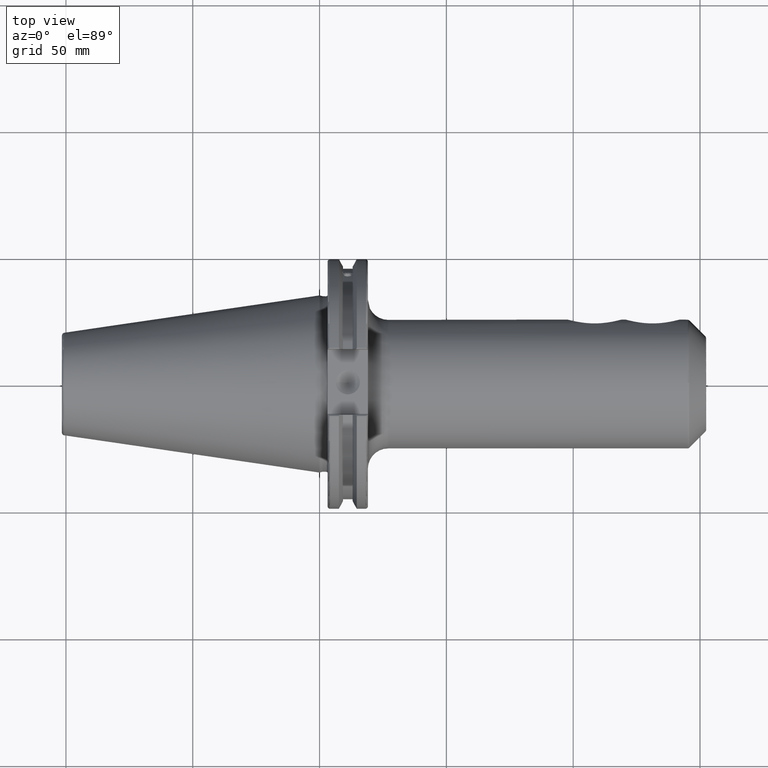
[diagram: clean part render]
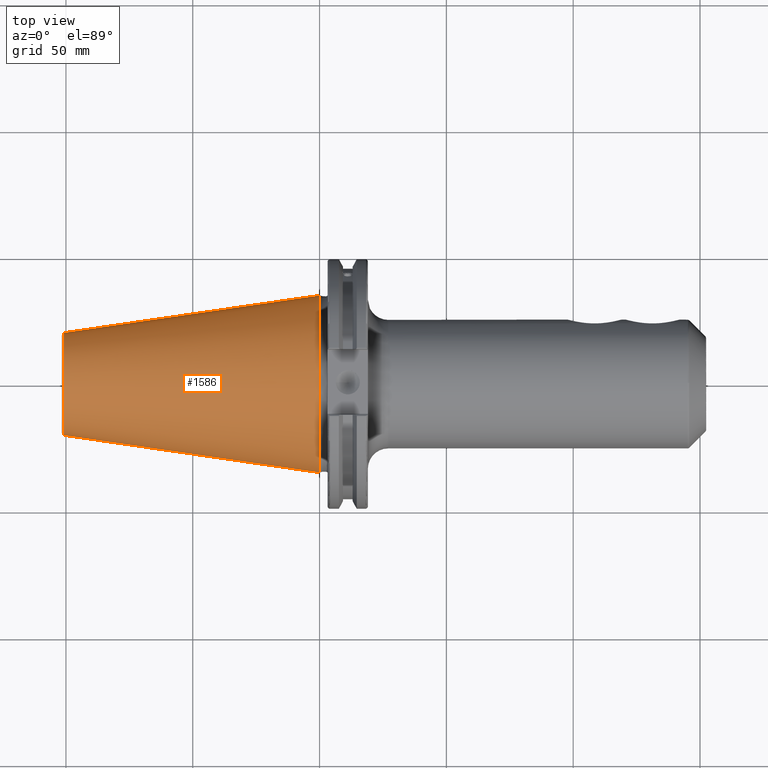
[diagram: same view with one face highlighted and labeled with its STEP entity id]
A machine part, top view. The second image highlights one B-rep face of the part: STEP entity #1586.
In plain terms, the highlighted conical surface has half-angle 8.297 deg.
Its self-contained STEP definition (entity closure, byte-faithful):
#50=CONICAL_SURFACE('',#1767,27.5166666666666,0.14481249823894);
#181=FACE_OUTER_BOUND('',#294,.T.);
#294=EDGE_LOOP('',(#1368,#1369,#1370,#1371,#1372));
#446=LINE('',#3266,#538);
#538=VECTOR('',#2147,27.5166666666666);
#617=CIRCLE('',#1761,20.233121911427);
#618=CIRCLE('',#1762,20.233121911427);
#622=CIRCLE('',#1768,34.925);
#782=VERTEX_POINT('',#3253);
#783=VERTEX_POINT('',#3254);
#786=VERTEX_POINT('',#3264);
#993=EDGE_CURVE('',#782,#783,#617,.T.);
#994=EDGE_CURVE('',#783,#782,#618,.T.);
#998=EDGE_CURVE('',#786,#786,#622,.T.);
#999=EDGE_CURVE('',#786,#783,#446,.T.);
#1368=ORIENTED_EDGE('',*,*,#998,.F.);
#1369=ORIENTED_EDGE('',*,*,#999,.T.);
#1370=ORIENTED_EDGE('',*,*,#993,.F.);
#1371=ORIENTED_EDGE('',*,*,#994,.F.);
#1372=ORIENTED_EDGE('',*,*,#999,.F.);
#1586=ADVANCED_FACE('',(#181),#50,.T.);
#1761=AXIS2_PLACEMENT_3D('',#3255,#2131,#2132);
#1762=AXIS2_PLACEMENT_3D('',#3256,#2133,#2134);
#1767=AXIS2_PLACEMENT_3D('',#3263,#2143,#2144);
#1768=AXIS2_PLACEMENT_3D('',#3265,#2145,#2146);
#2131=DIRECTION('center_axis',(-1.,0.,0.));
#2132=DIRECTION('ref_axis',(0.,-1.,3.06161699786838E-17));
#2133=DIRECTION('center_axis',(-1.,0.,0.));
#2134=DIRECTION('ref_axis',(0.,-1.,3.06161699786838E-17));
#2143=DIRECTION('center_axis',(1.,0.,0.));
#2144=DIRECTION('ref_axis',(0.,1.,0.));
#2145=DIRECTION('center_axis',(1.,0.,0.));
#2146=DIRECTION('ref_axis',(0.,0.,-1.));
#2147=DIRECTION('',(-0.989532981063281,0.144306893071729,1.76724974695192E-17));
#3253=CARTESIAN_POINT('',(-100.744306893072,-2.47784279855872E-15,20.233121911427));
#3254=CARTESIAN_POINT('',(-100.744306893072,-20.233121911427,-2.47784279855872E-15));
#3255=CARTESIAN_POINT('Origin',(-100.744306893072,0.,-3.09730349819841E-15));
#3256=CARTESIAN_POINT('Origin',(-100.744306893072,0.,-3.09730349819841E-15));
#3263=CARTESIAN_POINT('Origin',(-50.8,0.,0.));
#3264=CARTESIAN_POINT('',(-8.88178419700125E-15,-34.925,-4.27707894602213E-15));
#3265=CARTESIAN_POINT('Origin',(0.,0.,0.));
#3266=CARTESIAN_POINT('',(-50.8,-27.5166666666666,-3.3698197756538E-15));